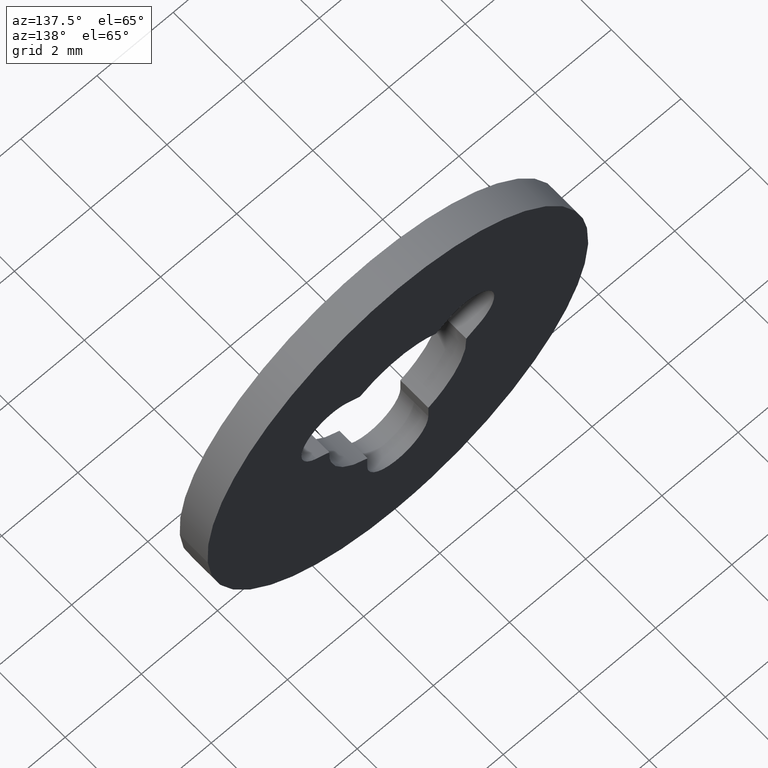
[diagram: clean part render]
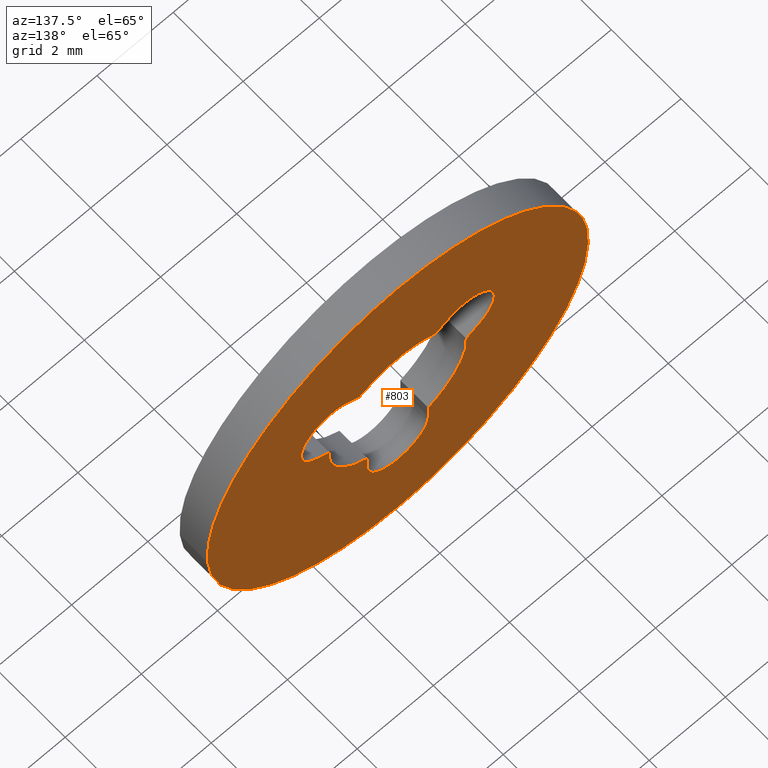
[diagram: same view with one face highlighted and labeled with its STEP entity id]
A machine part, auxiliary view. The second image highlights one B-rep face of the part: STEP entity #803.
In plain terms, the highlighted face is a freeform B-spline surface patch.
Its self-contained STEP definition (entity closure, byte-faithful):
#85=CARTESIAN_POINT('',(-4.965048002999415,0.800000000000023,0.590168050559857));
#86=VERTEX_POINT('',#85);
#92=CARTESIAN_POINT('',(0.0,0.800000000000023,-5.0));
#93=VERTEX_POINT('',#92);
#94=CARTESIAN_POINT('',(-4.965048002999415,0.800000000000023,0.590168050559856));
#95=CARTESIAN_POINT('',(-5.0,0.800000000000023,0.296119020391210));
#96=CARTESIAN_POINT('',(-5.0,0.800000000000023,0.0));
#97=CARTESIAN_POINT('',(-5.000000000000001,0.800000000000023,-5.000000000000001));
#98=CARTESIAN_POINT('',(0.0,0.800000000000023,-5.0));
#106=(BOUNDED_CURVE()B_SPLINE_CURVE(2,(#94,#95,#96,#97,#98),.UNSPECIFIED.,.F.,.U.)B_SPLINE_CURVE_WITH_KNOTS((3,2,3),(0.229562579808786,0.250000000000000,0.500000000000000),.UNSPECIFIED.)CURVE()GEOMETRIC_REPRESENTATION_ITEM()RATIONAL_B_SPLINE_CURVE((0.956026962526900,0.976056072863809,1.0,0.707106781186548,1.0))REPRESENTATION_ITEM(''));
#107=EDGE_CURVE('',#86,#93,#106,.T.);
#109=CARTESIAN_POINT('',(4.990674099992546,0.800000000000023,-0.305240933789139));
#110=VERTEX_POINT('',#109);
#111=CARTESIAN_POINT('',(0.0,0.800000000000023,-5.0));
#112=CARTESIAN_POINT('',(4.703532000033385,0.800000000000023,-5.000000000000001));
#113=CARTESIAN_POINT('',(4.990674099992546,0.800000000000023,-0.305240933789139));
#121=(BOUNDED_CURVE()B_SPLINE_CURVE(2,(#111,#112,#113),.UNSPECIFIED.,.F.,.U.)B_SPLINE_CURVE_WITH_KNOTS((3,3),(0.500000000000000,0.739333023226263),.UNSPECIFIED.)CURVE()GEOMETRIC_REPRESENTATION_ITEM()RATIONAL_B_SPLINE_CURVE((1.0,0.719603921835620,0.976072172374189))REPRESENTATION_ITEM(''));
#122=EDGE_CURVE('',#93,#110,#121,.T.);
#196=CARTESIAN_POINT('',(0.0,0.800000000000023,5.0));
#197=VERTEX_POINT('',#196);
#198=CARTESIAN_POINT('',(4.990674099992546,0.800000000000023,-0.305240933789139));
#199=CARTESIAN_POINT('',(4.999999999999999,0.800000000000023,-0.152762932077514));
#200=CARTESIAN_POINT('',(5.0,0.800000000000023,0.0));
#201=CARTESIAN_POINT('',(5.000000000000001,0.800000000000023,5.000000000000001));
#202=CARTESIAN_POINT('',(0.0,0.800000000000023,5.0));
#210=(BOUNDED_CURVE()B_SPLINE_CURVE(2,(#198,#199,#200,#201,#202),.UNSPECIFIED.,.F.,.U.)B_SPLINE_CURVE_WITH_KNOTS((3,2,3),(0.739333023226263,0.750000000000000,1.0),.UNSPECIFIED.)CURVE()GEOMETRIC_REPRESENTATION_ITEM()RATIONAL_B_SPLINE_CURVE((0.976072172374189,0.987502859350927,1.0,0.707106781186548,1.0))REPRESENTATION_ITEM(''));
#211=EDGE_CURVE('',#110,#197,#210,.T.);
#213=CARTESIAN_POINT('',(0.0,0.800000000000023,5.0));
#214=CARTESIAN_POINT('',(-4.440875442468178,0.800000000000023,5.0));
#215=CARTESIAN_POINT('',(-4.965048002999415,0.800000000000023,0.590168050559856));
#223=(BOUNDED_CURVE()B_SPLINE_CURVE(2,(#213,#214,#215),.UNSPECIFIED.,.F.,.U.)B_SPLINE_CURVE_WITH_KNOTS((3,3),(0.0,0.229562579808786),.UNSPECIFIED.)CURVE()GEOMETRIC_REPRESENTATION_ITEM()RATIONAL_B_SPLINE_CURVE((1.0,0.731050708322738,0.956026962526900))REPRESENTATION_ITEM(''));
#224=EDGE_CURVE('',#197,#86,#223,.T.);
#269=CARTESIAN_POINT('',(0.799999999999988,0.800000000000023,-1.999999860373660));
#270=VERTEX_POINT('',#269);
#276=CARTESIAN_POINT('',(-0.800000000000000,0.800000000000023,-2.0));
#277=VERTEX_POINT('',#276);
#278=CARTESIAN_POINT('',(-0.800000000000000,0.800000000000023,-2.0));
#279=CARTESIAN_POINT('',(-0.800000000000000,0.800000000000023,-2.461880246379777));
#280=CARTESIAN_POINT('',(-0.399999959693347,0.800000000000023,-2.692820346298606));
#281=CARTESIAN_POINT('',(0.000000080613306,0.800000000000023,-2.923760446217436));
#282=CARTESIAN_POINT('',(0.400000080613302,0.800000000000023,-2.692820276485433));
#283=CARTESIAN_POINT('',(0.800000080613298,0.800000000000023,-2.461880106753430));
#284=CARTESIAN_POINT('',(0.799999999999988,0.800000000000023,-1.999999860373660));
#292=(BOUNDED_CURVE()B_SPLINE_CURVE(2,(#278,#279,#280,#281,#282,#283,#284),.UNSPECIFIED.,.F.,.U.)B_SPLINE_CURVE_WITH_KNOTS((3,2,2,3),(0.0,0.333333333333333,0.666666666666667,1.0),.UNSPECIFIED.)CURVE()GEOMETRIC_REPRESENTATION_ITEM()RATIONAL_B_SPLINE_CURVE((1.0,0.866025389240028,1.0,0.866025389240028,1.0,0.866025389240028,1.0))REPRESENTATION_ITEM(''));
#293=EDGE_CURVE('',#277,#270,#292,.T.);
#316=CARTESIAN_POINT('',(-0.800000000000000,0.800000000000023,-1.612451549659710));
#317=VERTEX_POINT('',#316);
#318=CARTESIAN_POINT('',(-0.800000000000000,0.800000000000023,-1.612451549659710));
#319=CARTESIAN_POINT('',(-0.800000000000000,0.800000000000023,-2.0));
#320=QUASI_UNIFORM_CURVE('',1,(#318,#319),.UNSPECIFIED.,.F.,.U.);
#321=EDGE_CURVE('',#317,#277,#320,.T.);
#361=CARTESIAN_POINT('',(-1.796423492117540,0.800000000000023,0.113413566067874));
#362=VERTEX_POINT('',#361);
#363=CARTESIAN_POINT('',(-1.796423492117537,0.800000000000023,0.113413566067874));
#364=CARTESIAN_POINT('',(-1.871810468826477,0.800000000000023,-1.080684641536401));
#365=CARTESIAN_POINT('',(-0.800000000000000,0.800000000000023,-1.612451549659710));
#373=(BOUNDED_CURVE()B_SPLINE_CURVE(2,(#363,#364,#365),.UNSPECIFIED.,.F.,.U.)CURVE()GEOMETRIC_REPRESENTATION_ITEM()QUASI_UNIFORM_CURVE()RATIONAL_B_SPLINE_CURVE((1.0,0.832802137488904,1.0))REPRESENTATION_ITEM(''));
#374=EDGE_CURVE('',#362,#317,#373,.T.);
#397=CARTESIAN_POINT('',(-2.123123344245450,0.800000000000023,0.302073969352699));
#398=VERTEX_POINT('',#397);
#399=CARTESIAN_POINT('',(-2.123123344245450,0.800000000000023,0.302073969352699));
#400=CARTESIAN_POINT('',(-1.796423492117540,0.800000000000023,0.113413566067874));
#401=QUASI_UNIFORM_CURVE('',1,(#399,#400),.UNSPECIFIED.,.F.,.U.);
#402=EDGE_CURVE('',#398,#362,#401,.T.);
#450=CARTESIAN_POINT('',(-1.332000000000000,0.800000000000023,1.692800000000000));
#451=VERTEX_POINT('',#450);
#452=CARTESIAN_POINT('',(-1.332000000000000,0.800000000000023,1.692799999999999));
#453=CARTESIAN_POINT('',(-1.733986352333857,0.800000000000023,1.924936338147488));
#454=CARTESIAN_POINT('',(-2.135008295443140,0.800000000000023,1.691137903387843));
#455=CARTESIAN_POINT('',(-2.536030238552423,0.800000000000023,1.457339468628198));
#456=CARTESIAN_POINT('',(-2.532058660846635,0.800000000000023,0.993157894756795));
#457=CARTESIAN_POINT('',(-2.528087083140846,0.800000000000023,0.528976320885393));
#458=CARTESIAN_POINT('',(-2.123123344245450,0.800000000000023,0.302073969352700));
#466=(BOUNDED_CURVE()B_SPLINE_CURVE(2,(#452,#453,#454,#455,#456,#457,#458),.UNSPECIFIED.,.F.,.U.)B_SPLINE_CURVE_WITH_KNOTS((3,2,2,3),(0.0,0.333333333333333,0.666666666666667,1.0),.UNSPECIFIED.)CURVE()GEOMETRIC_REPRESENTATION_ITEM()RATIONAL_B_SPLINE_CURVE((1.0,0.864942373379540,1.0,0.864942373379540,1.0,0.864942373379540,1.0))REPRESENTATION_ITEM(''));
#467=EDGE_CURVE('',#451,#398,#466,.T.);
#490=CARTESIAN_POINT('',(-0.996449955275269,0.800000000000023,1.499028847831792));
#491=VERTEX_POINT('',#490);
#492=CARTESIAN_POINT('',(-0.996449955275269,0.800000000000023,1.499028847831792));
#493=CARTESIAN_POINT('',(-1.332000000000000,0.800000000000023,1.692800000000000));
#494=QUASI_UNIFORM_CURVE('',1,(#492,#493),.UNSPECIFIED.,.F.,.U.);
#495=EDGE_CURVE('',#491,#451,#494,.T.);
#535=CARTESIAN_POINT('',(0.996449962194055,0.800000000000023,1.499028843232666));
#536=VERTEX_POINT('',#535);
#537=CARTESIAN_POINT('',(0.996449962194055,0.800000000000023,1.499028843232666));
#538=CARTESIAN_POINT('',(4.987982E-009,0.800000000000023,2.161399368435529));
#539=CARTESIAN_POINT('',(-0.996449955275270,0.800000000000023,1.499028847831793));
#547=(BOUNDED_CURVE()B_SPLINE_CURVE(2,(#537,#538,#539),.UNSPECIFIED.,.F.,.U.)CURVE()GEOMETRIC_REPRESENTATION_ITEM()QUASI_UNIFORM_CURVE()RATIONAL_B_SPLINE_CURVE((1.0,0.832793803073461,1.0))REPRESENTATION_ITEM(''));
#548=EDGE_CURVE('',#536,#491,#547,.T.);
#571=CARTESIAN_POINT('',(1.327538441845376,0.800000000000023,1.690166607177930));
#572=VERTEX_POINT('',#571);
#573=CARTESIAN_POINT('',(1.327538441845376,0.800000000000023,1.690166607177930));
#574=CARTESIAN_POINT('',(0.996449962194055,0.800000000000023,1.499028843232666));
#575=QUASI_UNIFORM_CURVE('',1,(#573,#574),.UNSPECIFIED.,.F.,.U.);
#576=EDGE_CURVE('',#572,#536,#575,.T.);
#624=CARTESIAN_POINT('',(2.136661558152790,0.800000000000023,0.309833392820983));
#625=VERTEX_POINT('',#624);
#626=CARTESIAN_POINT('',(2.136661558152790,0.800000000000023,0.309833392820983));
#627=CARTESIAN_POINT('',(2.535129434593691,0.800000000000023,0.543407117324514));
#628=CARTESIAN_POINT('',(2.532082593737129,0.800000000000023,1.005277283166134));
#629=CARTESIAN_POINT('',(2.529035752880570,0.800000000000023,1.467147449007754));
#630=CARTESIAN_POINT('',(2.127521035583111,0.800000000000023,1.695443890345138));
#631=CARTESIAN_POINT('',(1.726006318285654,0.800000000000023,1.923740331682522));
#632=CARTESIAN_POINT('',(1.327538441845376,0.800000000000023,1.690166607177930));
#640=(BOUNDED_CURVE()B_SPLINE_CURVE(2,(#626,#627,#628,#629,#630,#631,#632),.UNSPECIFIED.,.F.,.U.)B_SPLINE_CURVE_WITH_KNOTS((3,2,2,3),(0.0,0.333333333333333,0.666666666666667,1.0),.UNSPECIFIED.)CURVE()GEOMETRIC_REPRESENTATION_ITEM()RATIONAL_B_SPLINE_CURVE((1.0,0.866025403784217,1.0,0.866025403784217,1.0,0.866025403784217,1.0))REPRESENTATION_ITEM(''));
#641=EDGE_CURVE('',#625,#572,#640,.T.);
#664=CARTESIAN_POINT('',(1.796423492363695,0.800000000000023,0.113413562168851));
#665=VERTEX_POINT('',#664);
#666=CARTESIAN_POINT('',(1.796423492363695,0.800000000000023,0.113413562168851));
#667=CARTESIAN_POINT('',(2.136661558152790,0.800000000000023,0.309833392820983));
#668=QUASI_UNIFORM_CURVE('',1,(#666,#667),.UNSPECIFIED.,.F.,.U.);
#669=EDGE_CURVE('',#665,#625,#668,.T.);
#709=CARTESIAN_POINT('',(0.800000000000012,0.800000000000023,-1.612451549659705));
#710=VERTEX_POINT('',#709);
#711=CARTESIAN_POINT('',(0.800000000000011,0.800000000000023,-1.612451549659704));
#712=CARTESIAN_POINT('',(1.871810466303460,0.800000000000023,-1.080684642788159));
#713=CARTESIAN_POINT('',(1.796423492363694,0.800000000000023,0.113413562168851));
#721=(BOUNDED_CURVE()B_SPLINE_CURVE(2,(#711,#712,#713),.UNSPECIFIED.,.F.,.U.)CURVE()GEOMETRIC_REPRESENTATION_ITEM()QUASI_UNIFORM_CURVE()RATIONAL_B_SPLINE_CURVE((1.0,0.832802138089652,1.0))REPRESENTATION_ITEM(''));
#722=EDGE_CURVE('',#710,#665,#721,.T.);
#743=CARTESIAN_POINT('',(0.799999999999988,0.800000000000023,-1.999999860373660));
#744=CARTESIAN_POINT('',(0.800000000000012,0.800000000000023,-1.612451549659705));
#745=QUASI_UNIFORM_CURVE('',1,(#743,#744),.UNSPECIFIED.,.F.,.U.);
#746=EDGE_CURVE('',#270,#710,#745,.T.);
#778=CARTESIAN_POINT('',(-5.499409322677553,0.800000000000000,5.499499980618060));
#779=CARTESIAN_POINT('',(5.499378298459947,0.800000000000000,5.499499980618060));
#780=CARTESIAN_POINT('',(-5.499409322677553,0.800000000000000,-5.499500248838961));
#781=CARTESIAN_POINT('',(5.499378298459947,0.800000000000000,-5.499500248838961));
#782=B_SPLINE_SURFACE_WITH_KNOTS('',1,1,((#778,#780),(#779,#781)),.UNSPECIFIED.,.F.,.F.,.U.,(2,2),(2,2),(0.0,10.998787621137501),(0.0,10.999000229457019),.UNSPECIFIED.);
#783=ORIENTED_EDGE('',*,*,#211,.F.);
#784=ORIENTED_EDGE('',*,*,#122,.F.);
#785=ORIENTED_EDGE('',*,*,#107,.F.);
#786=ORIENTED_EDGE('',*,*,#224,.F.);
#787=EDGE_LOOP('',(#783,#784,#785,#786));
#788=FACE_OUTER_BOUND('',#787,.T.);
#789=ORIENTED_EDGE('',*,*,#293,.T.);
#790=ORIENTED_EDGE('',*,*,#746,.T.);
#791=ORIENTED_EDGE('',*,*,#722,.T.);
#792=ORIENTED_EDGE('',*,*,#669,.T.);
#793=ORIENTED_EDGE('',*,*,#641,.T.);
#794=ORIENTED_EDGE('',*,*,#576,.T.);
#795=ORIENTED_EDGE('',*,*,#548,.T.);
#796=ORIENTED_EDGE('',*,*,#495,.T.);
#797=ORIENTED_EDGE('',*,*,#467,.T.);
#798=ORIENTED_EDGE('',*,*,#402,.T.);
#799=ORIENTED_EDGE('',*,*,#374,.T.);
#800=ORIENTED_EDGE('',*,*,#321,.T.);
#801=EDGE_LOOP('',(#789,#790,#791,#792,#793,#794,#795,#796,#797,#798,#799,#800));
#802=FACE_BOUND('',#801,.T.);
#803=ADVANCED_FACE('',(#788,#802),#782,.T.);